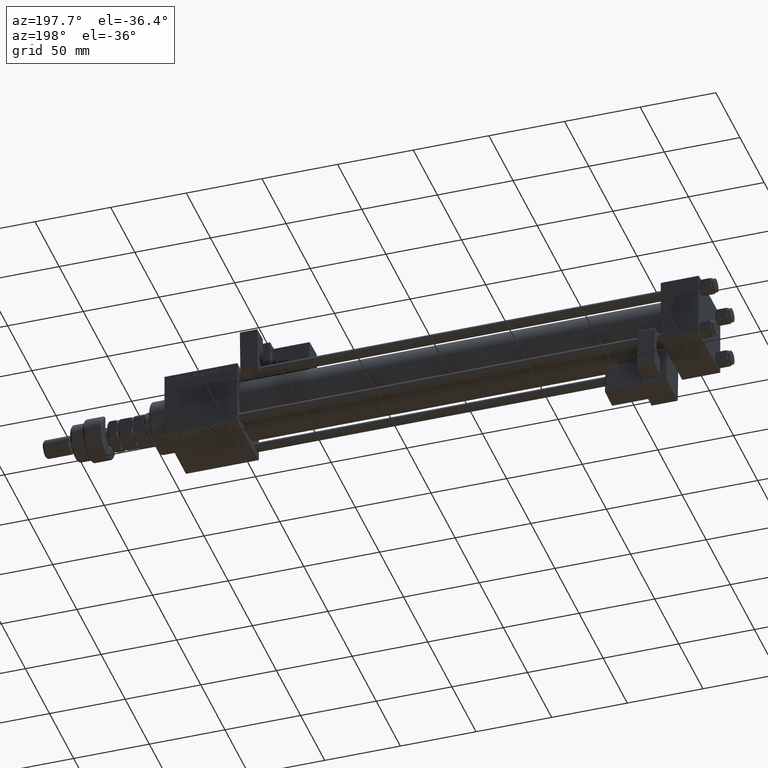
[diagram: clean part render]
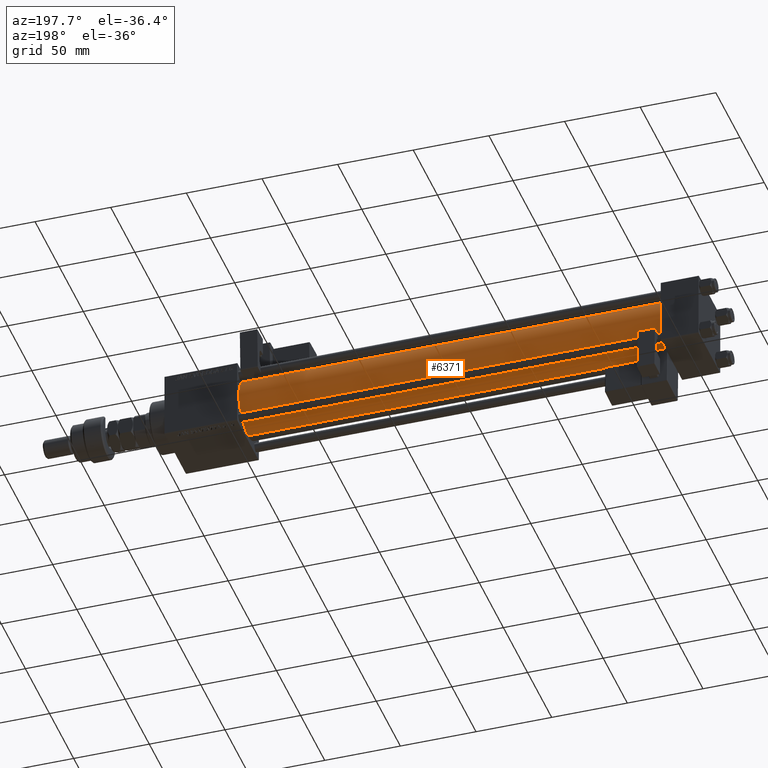
[diagram: same view with one face highlighted and labeled with its STEP entity id]
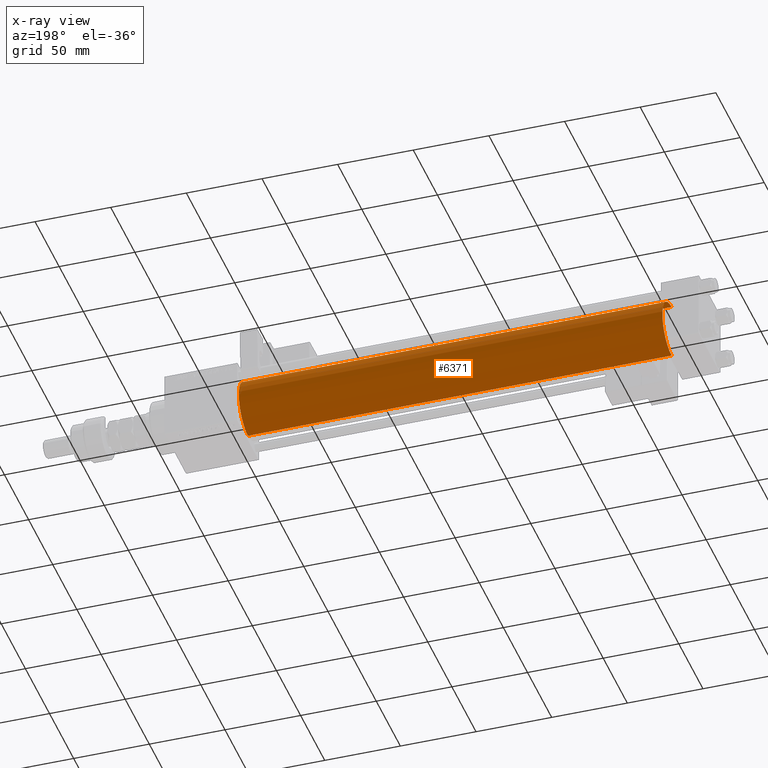
[diagram: x-ray of the same camera — body ghosted, the highlighted face saturated]
A machine part, auxiliary view. The second image highlights one B-rep face of the part: STEP entity #6371.
The next image is the same camera in x-ray: the body ghosted, the highlighted face saturated — about 0% of this face is hidden behind the body in this view.
In plain terms, the highlighted cylindrical surface (edge-blend (fillet) strip) has radius 19 mm, axis along (-1, -0, -0).
Its self-contained STEP definition (entity closure, byte-faithful):
#48 = AXIS2_PLACEMENT_3D ( 'NONE', #24504, #28975, #46098 ) ;
#471 = CARTESIAN_POINT ( 'NONE',  ( 25.00000000000002132, -2.602085213965210642E-15, 0.000000000000000000 ) ) ;
#684 = CARTESIAN_POINT ( 'NONE',  ( 305.0000000000000568, -2.752562955852396712E-16, -19.00000000000000000 ) ) ;
#4392 = DIRECTION ( 'NONE',  ( 0.000000000000000000, 0.000000000000000000, 1.000000000000000000 ) ) ;
#4586 = ORIENTED_EDGE ( 'NONE', *, *, #47665, .T. ) ;
#5955 = CIRCLE ( 'NONE', #34562, 19.00000000000000000 ) ;
#6371 = ADVANCED_FACE ( 'NONE', ( #45203 ), #19978, .T. ) ;
#6925 = CARTESIAN_POINT ( 'NONE',  ( 25.00000000000002132, -2.602085213965210642E-15, 19.00000000000000000 ) ) ;
#7500 = CARTESIAN_POINT ( 'NONE',  ( 305.0000000000000568, -2.602085213965210642E-15, 19.00000000000000000 ) ) ;
#9211 = VECTOR ( 'NONE', #54622, 1000.000000000000000 ) ;
#15504 = CARTESIAN_POINT ( 'NONE',  ( 305.0000000000000568, -2.602085213965210642E-15, 0.000000000000000000 ) ) ;
#15745 = ORIENTED_EDGE ( 'NONE', *, *, #18185, .T. ) ;
#18185 = EDGE_CURVE ( 'NONE', #41115, #37090, #25170, .T. ) ;
#19381 = CARTESIAN_POINT ( 'NONE',  ( 305.0000000000000568, -2.602085213965210642E-15, 19.00000000000000000 ) ) ;
#19705 = DIRECTION ( 'NONE',  ( 0.000000000000000000, 0.000000000000000000, 1.000000000000000000 ) ) ;
#19978 = CYLINDRICAL_SURFACE ( 'NONE', #36575, 19.00000000000000000 ) ;
#20426 = CARTESIAN_POINT ( 'NONE',  ( 305.0000000000000568, -2.752562955852396712E-16, -19.00000000000000000 ) ) ;
#24138 = VERTEX_POINT ( 'NONE', #7500 ) ;
#24504 = CARTESIAN_POINT ( 'NONE',  ( 305.0000000000000568, -2.602085213965210642E-15, 0.000000000000000000 ) ) ;
#25170 = LINE ( 'NONE', #20426, #9211 ) ;
#26283 = VERTEX_POINT ( 'NONE', #6925 ) ;
#28507 = ORIENTED_EDGE ( 'NONE', *, *, #41658, .F. ) ;
#28869 = LINE ( 'NONE', #19381, #44484 ) ;
#28911 = DIRECTION ( 'NONE',  ( -1.000000000000000000, -0.000000000000000000, -0.000000000000000000 ) ) ;
#28975 = DIRECTION ( 'NONE',  ( 1.000000000000000000, 0.000000000000000000, 0.000000000000000000 ) ) ;
#32259 = DIRECTION ( 'NONE',  ( -1.000000000000000000, -0.000000000000000000, -0.000000000000000000 ) ) ;
#34562 = AXIS2_PLACEMENT_3D ( 'NONE', #471, #42782, #4392 ) ;
#36407 = EDGE_LOOP ( 'NONE', ( #39500, #15745, #4586, #28507 ) ) ;
#36575 = AXIS2_PLACEMENT_3D ( 'NONE', #15504, #28911, #19705 ) ;
#37090 = VERTEX_POINT ( 'NONE', #55393 ) ;
#39500 = ORIENTED_EDGE ( 'NONE', *, *, #46585, .F. ) ;
#41115 = VERTEX_POINT ( 'NONE', #684 ) ;
#41658 = EDGE_CURVE ( 'NONE', #24138, #26283, #28869, .T. ) ;
#42782 = DIRECTION ( 'NONE',  ( 1.000000000000000000, -0.000000000000000000, 0.000000000000000000 ) ) ;
#44484 = VECTOR ( 'NONE', #32259, 1000.000000000000000 ) ;
#45203 = FACE_OUTER_BOUND ( 'NONE', #36407, .T. ) ;
#46098 = DIRECTION ( 'NONE',  ( 0.000000000000000000, 0.000000000000000000, -1.000000000000000000 ) ) ;
#46585 = EDGE_CURVE ( 'NONE', #41115, #24138, #47504, .T. ) ;
#47504 = CIRCLE ( 'NONE', #48, 19.00000000000000000 ) ;
#47665 = EDGE_CURVE ( 'NONE', #37090, #26283, #5955, .T. ) ;
#54622 = DIRECTION ( 'NONE',  ( -1.000000000000000000, -0.000000000000000000, -0.000000000000000000 ) ) ;
#55393 = CARTESIAN_POINT ( 'NONE',  ( 25.00000000000002132, -2.752562955852396712E-16, -19.00000000000000000 ) ) ;